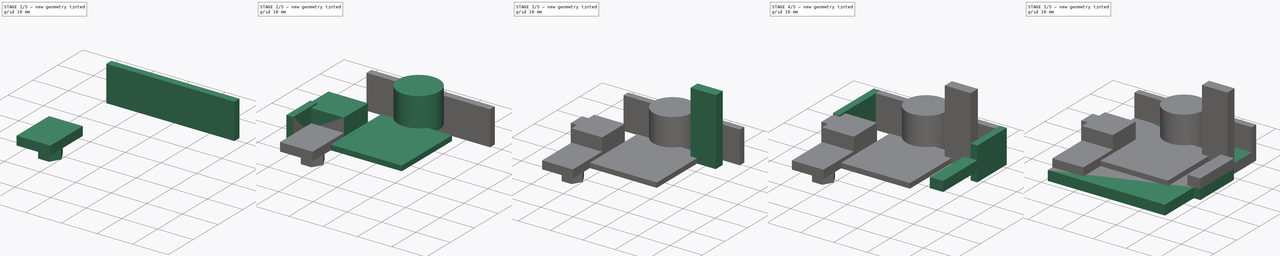
[diagram: build sequence overview — one tinted view per stage of 5, left to right]
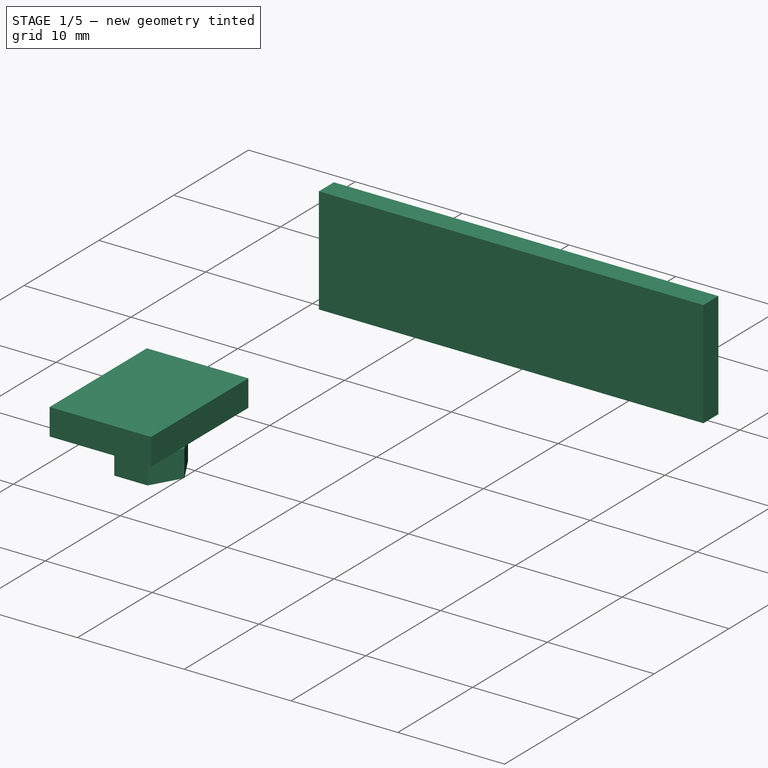
[diagram: stage 1 of 5 — iso view after this stage's code; geometry added in this stage tinted green]
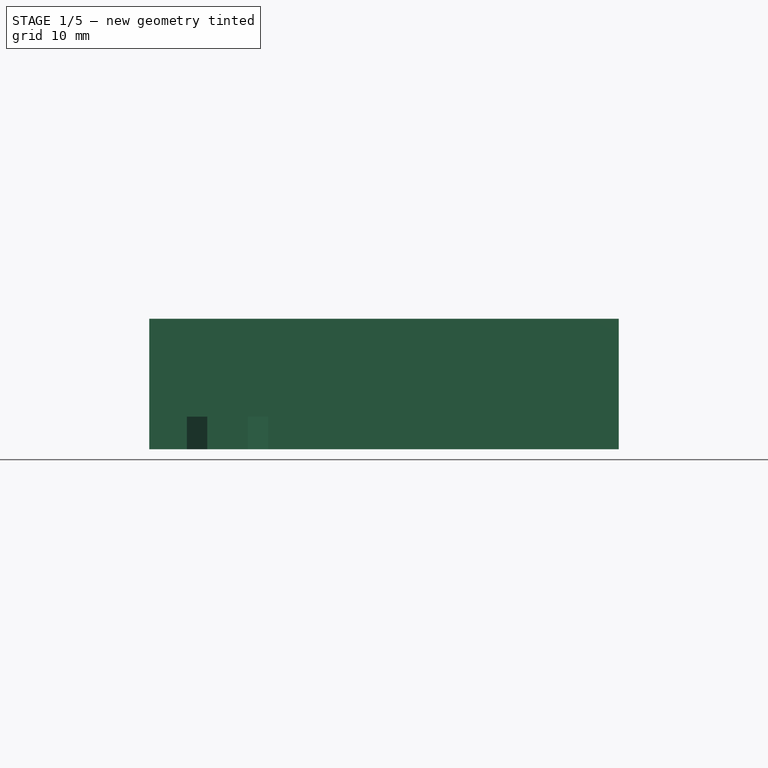
[diagram: stage 1 of 5 — front view after this stage's code; geometry added in this stage tinted green]
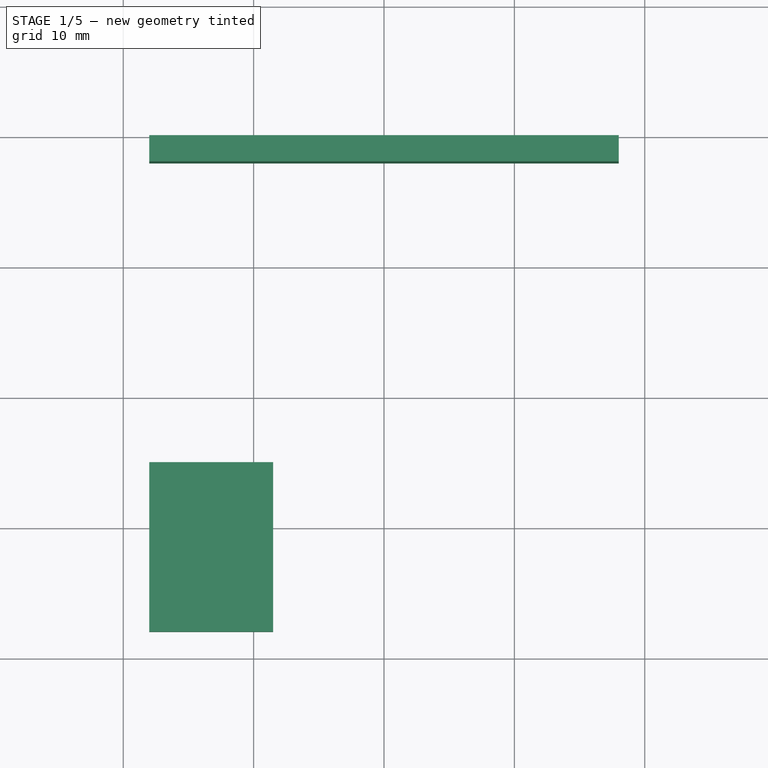
[diagram: stage 1 of 5 — top view after this stage's code; geometry added in this stage tinted green]
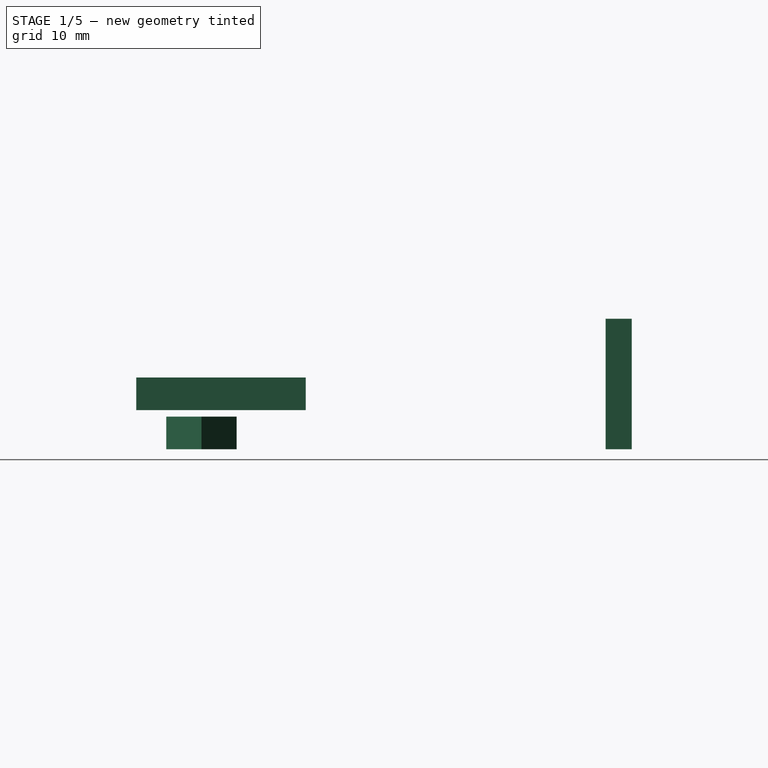
[diagram: stage 1 of 5 — right view after this stage's code; geometry added in this stage tinted green]
FCSTD DOCUMENT  (FreeCAD 0.19R24291 (Git))
Label: eth_conn_bottom_1_noncon
License: All rights reserved
LicenseURL: http://en.wikipedia.org/wiki/All_rights_reserved
objects: Part::Box×10, Part::Mirroring×6, Part::Cut×6, Part::Cylinder×2, Sketcher::SketchObject×1, Part::Extrusion×1
note: 26 computed .brp shape members not serialized (recipe doc carries the construction recipe); baked Part::Feature solids carry a one-line shape summary decoded from their .brp

FEATURE [Part::Cylinder] Cylinder001
  Angle = 360
  AttacherType = Attacher::AttachEngine3D
  Height = 10
  Placement = pos=(8,-3,0) rot=(0,0,1;0rad)
  Radius = 1.5
FEATURE [Part::Box] Box008  label="Cube008"
  AttacherType = Attacher::AttachEngine3D
  Height = 10
  Length = 36
  Placement = pos=(2,-10,0) rot=(0,0,1;0rad)
  Width = 2
FEATURE [Part::Mirroring] mirror  label="Cube008 (mirrored)"
  Base = (0,10,0)
  Normal = (0,-1,0)
  Source = -> Box008
FEATURE [Part::Box] Box009  label="Cube009"
  AttacherType = Attacher::AttachEngine3D
  Height = 2.5
  Length = 9.5
  Placement = pos=(2,-8,3) rot=(0,0,1;0rad)
  Width = 13
FEATURE [Sketcher::SketchObject] Sketch
  FullyConstrained = true
  MapMode = 5
  Placement = pos=(8,-3,0) rot=(1,0,0;3.14159rad)
  Support = -> [Cylinder001]
  sketch-geometry (7):
    g0: LineSegment StartX=3.11769 StartY=0 StartZ=0 EndX=1.55885 EndY=2.7 EndZ=0
    g1: LineSegment StartX=1.55885 StartY=2.7 StartZ=0 EndX=-1.55885 EndY=2.7 EndZ=0
    g2: LineSegment StartX=-1.55885 StartY=2.7 StartZ=0 EndX=-3.11769 EndY=4.9e-15 EndZ=0
    g3: LineSegment StartX=-3.11769 StartY=4.8e-15 StartZ=0 EndX=-1.55885 EndY=-2.7 EndZ=0
    g4: LineSegment StartX=-1.55885 StartY=-2.7 StartZ=0 EndX=1.55885 EndY=-2.7 EndZ=0
    g5: LineSegment StartX=1.55885 StartY=-2.7 StartZ=0 EndX=3.11769 EndY=0 EndZ=0
    g6: Circle CenterX=0 CenterY=0 CenterZ=0 NormalX=0 NormalY=0 NormalZ=1 AngleXU=0 Radius=3.11769
  constraints (16):
    c: Coincident(g0,g1)
    c: Coincident(g1,g2)
    c: Coincident(g2,g3)
    c: Coincident(g3,g4)
    c: Coincident(g4,g5)
    c: Coincident(g5,g0)
    c: Equal(g0, g1-g5) x5
    c: PointOnObject(g0,g6)
    c: PointOnObject(g1,g6)
    c: PointOnObject(g2,g6)
    c: PointOnObject(g3,g6)
    c: PointOnObject(g4,g6)
    c: PointOnObject(g5,g6)
    c: Coincident(g6,g-1)
    c: PointOnObject(g0,g-1)
    c: Distance(g-1,g1) = 2.7
FEATURE [Part::Extrusion] Extrude
  Base = -> Sketch
  Dir = (0,0,1)
  DirMode = 0
  FaceMakerClass = Part::FaceMakerBullseye
  LengthFwd = 2.5
  LengthRev = 0
  Solid = true
  Symmetric = false
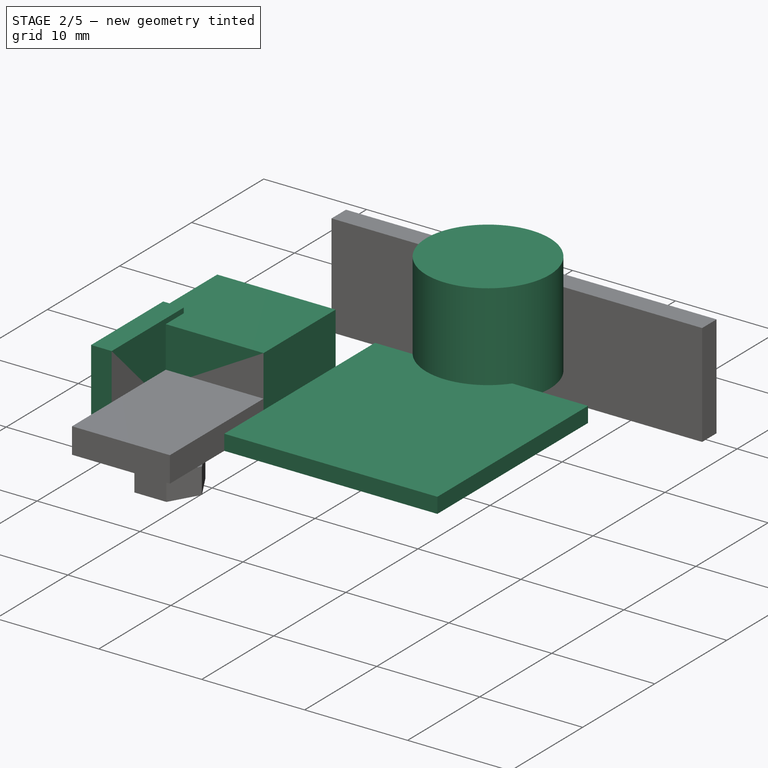
[diagram: stage 2 of 5 — iso view after this stage's code; geometry added in this stage tinted green]
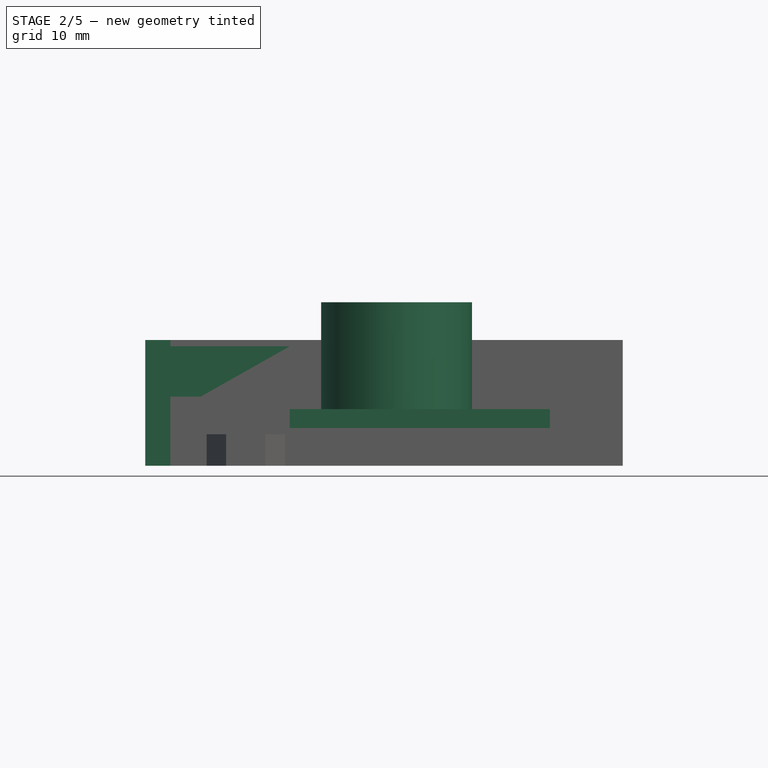
[diagram: stage 2 of 5 — front view after this stage's code; geometry added in this stage tinted green]
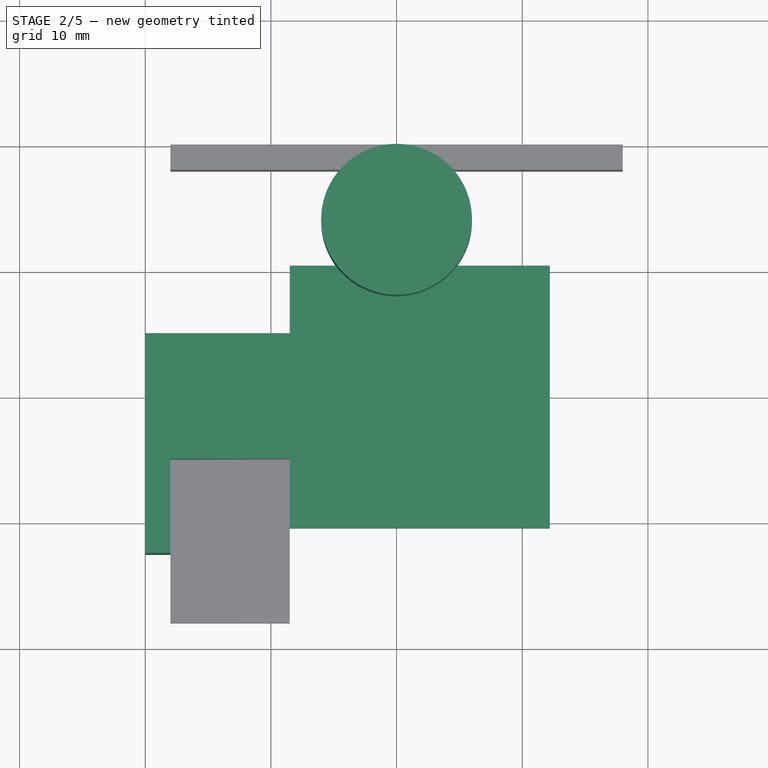
[diagram: stage 2 of 5 — top view after this stage's code; geometry added in this stage tinted green]
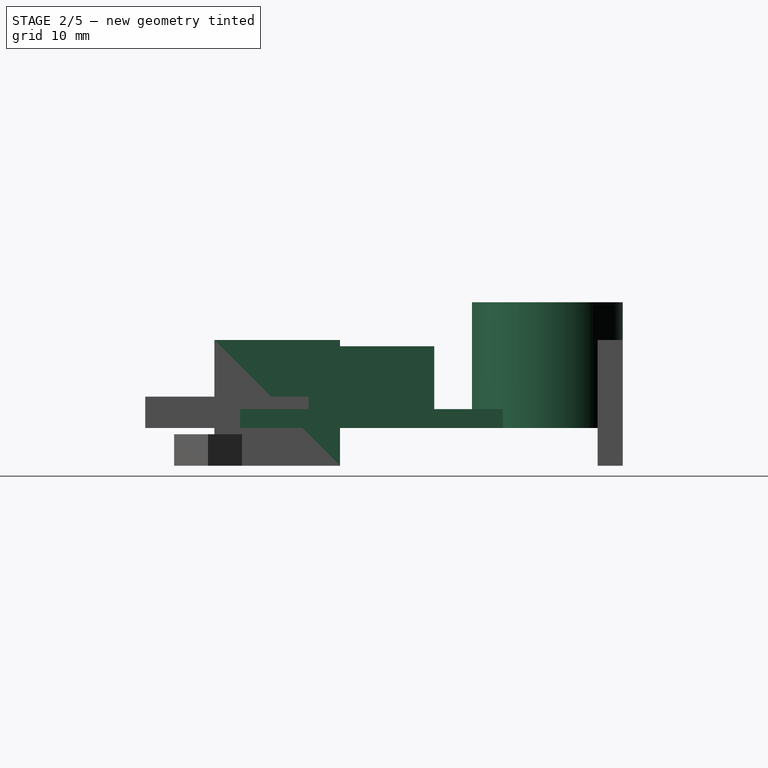
[diagram: stage 2 of 5 — right view after this stage's code; geometry added in this stage tinted green]
FEATURE [Part::Box] Box005  label="Cube005"
  AttacherType = Attacher::AttachEngine3D
  Height = 6.5
  Length = 11.5
  Placement = pos=(0,5,3) rot=(0,0,1;0rad)
  Width = 10
FEATURE [Part::Box] Box006  label="Cube006"
  AttacherType = Attacher::AttachEngine3D
  Height = 10
  Length = 2
  Placement = pos=(0,-2.5,0) rot=(0,0,1;0rad)
  Width = 10
FEATURE [Part::Box] Box007  label="Cube007"
  AttacherType = Attacher::AttachEngine3D
  Height = 1.5
  Length = 20.7
  Placement = pos=(11.5,-0.448498,3) rot=(0,0,1;0rad)
  Width = 20.9
FEATURE [Part::Cylinder] Cylinder
  Angle = 360
  AttacherType = Attacher::AttachEngine3D
  Height = 10
  Placement = pos=(20,-4,3) rot=(0,0,1;0rad)
  Radius = 6
FEATURE [Part::Mirroring] Part__Mirroring004  label="Cylinder (Mirror #5)"
  Base = (0,0,0)
  Normal = (0,1,0)
  Placement = pos=(0,20,0) rot=(0,0,1;0rad)
  Source = -> Cylinder
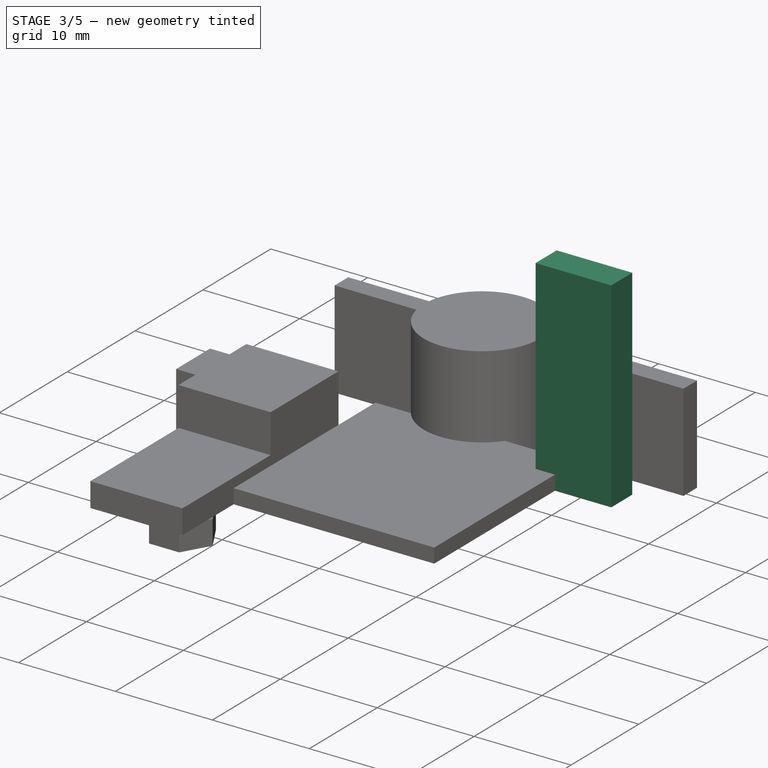
[diagram: stage 3 of 5 — iso view after this stage's code; geometry added in this stage tinted green]
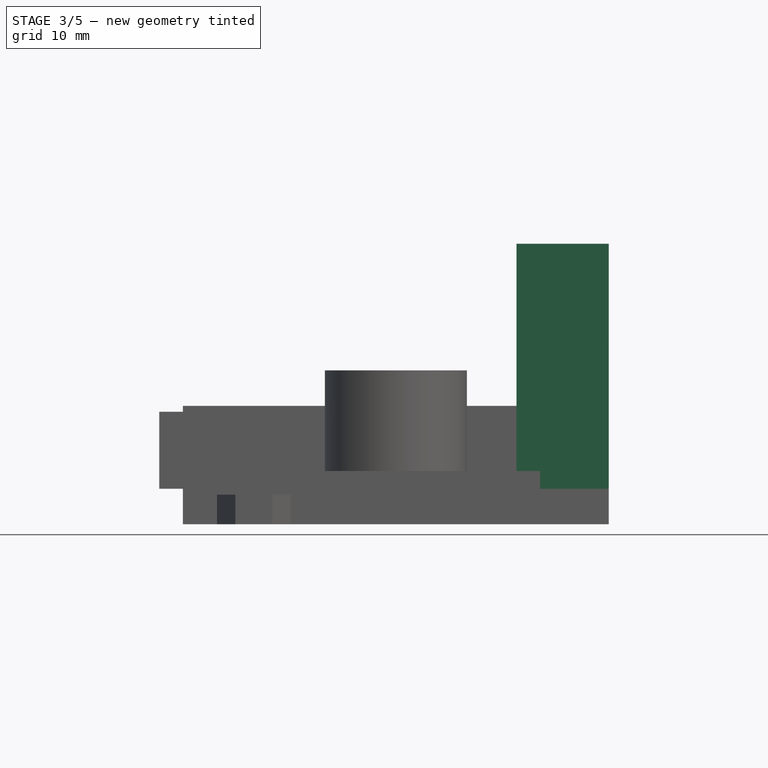
[diagram: stage 3 of 5 — front view after this stage's code; geometry added in this stage tinted green]
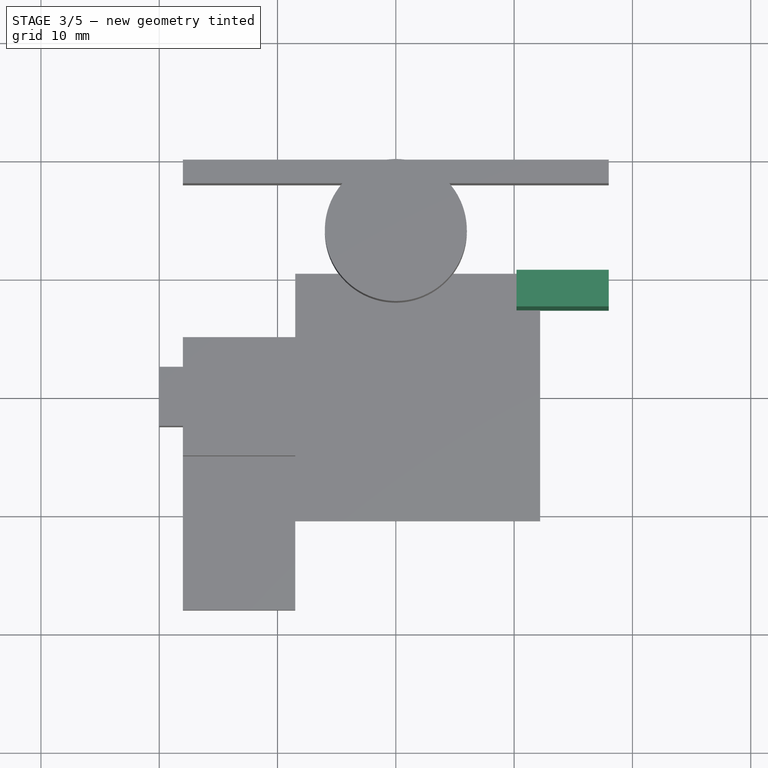
[diagram: stage 3 of 5 — top view after this stage's code; geometry added in this stage tinted green]
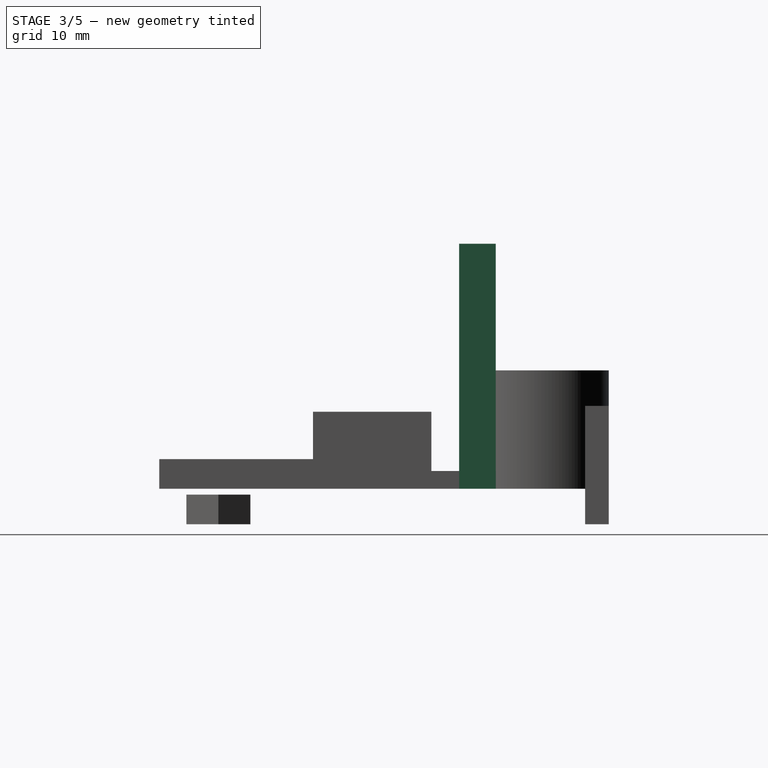
[diagram: stage 3 of 5 — right view after this stage's code; geometry added in this stage tinted green]
FEATURE [Part::Box] Box004  label="Cube004"
  AttacherType = Attacher::AttachEngine3D
  Height = 20.7
  Length = 7.8
  Placement = pos=(30.2,-0.450903,3) rot=(0,0,1;0rad)
  Width = 3.1
FEATURE [Part::Mirroring] Part__Mirroring002  label="Cube004 (Mirror #3)"
  Base = (0,0,0)
  Normal = (0,1,0)
  Placement = pos=(0,20,0) rot=(0,0,1;0rad)
  Source = -> Box004
FEATURE [Part::Mirroring] Part__Mirroring003  label="Cube006 (Mirror #4)"
  Base = (0,0,0)
  Normal = (0,1,0)
  Placement = pos=(0,20,0) rot=(0,0,1;0rad)
  Source = -> Box006
FEATURE [Part::Cut] Cut004
  Base = -> Box005
  Tool = -> Box006
FEATURE [Part::Cut] Cut005
  Base = -> Cut004
  Tool = -> Part__Mirroring003
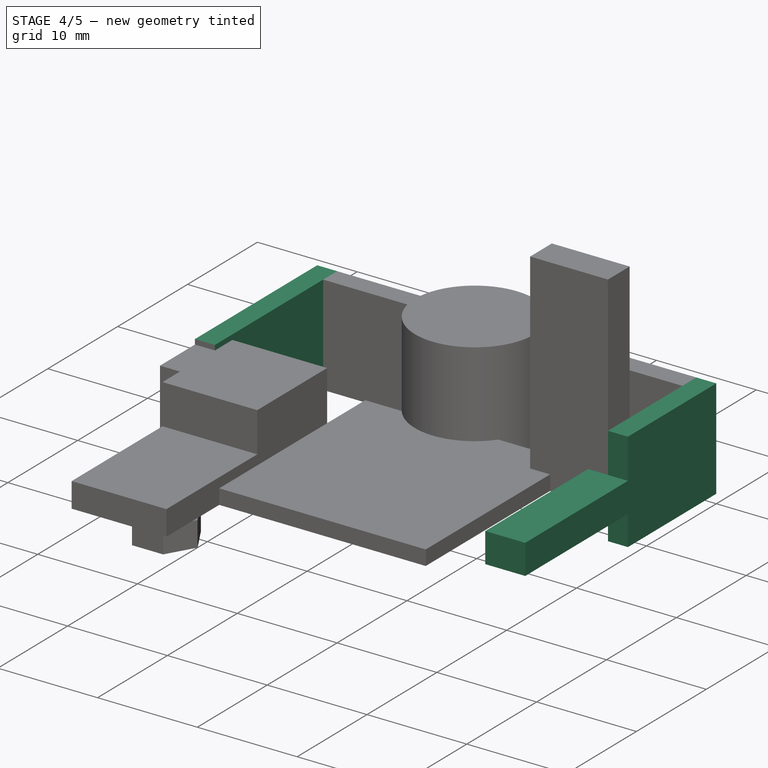
[diagram: stage 4 of 5 — iso view after this stage's code; geometry added in this stage tinted green]
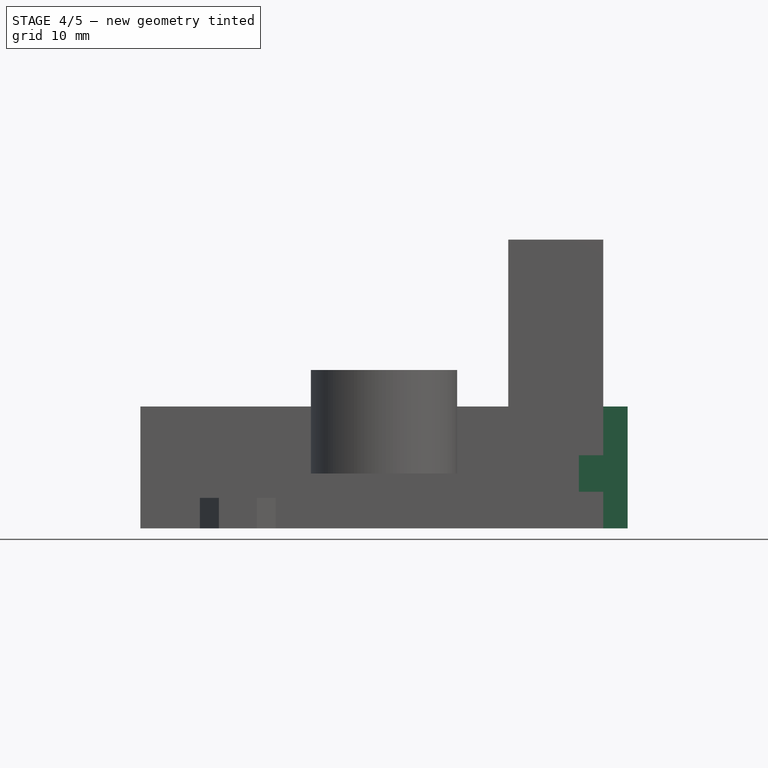
[diagram: stage 4 of 5 — front view after this stage's code; geometry added in this stage tinted green]
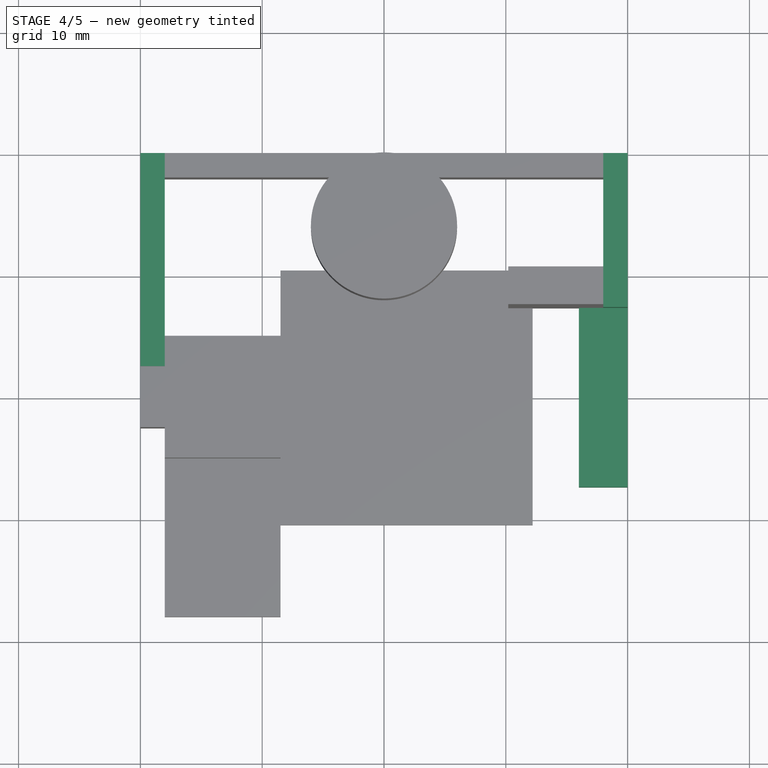
[diagram: stage 4 of 5 — top view after this stage's code; geometry added in this stage tinted green]
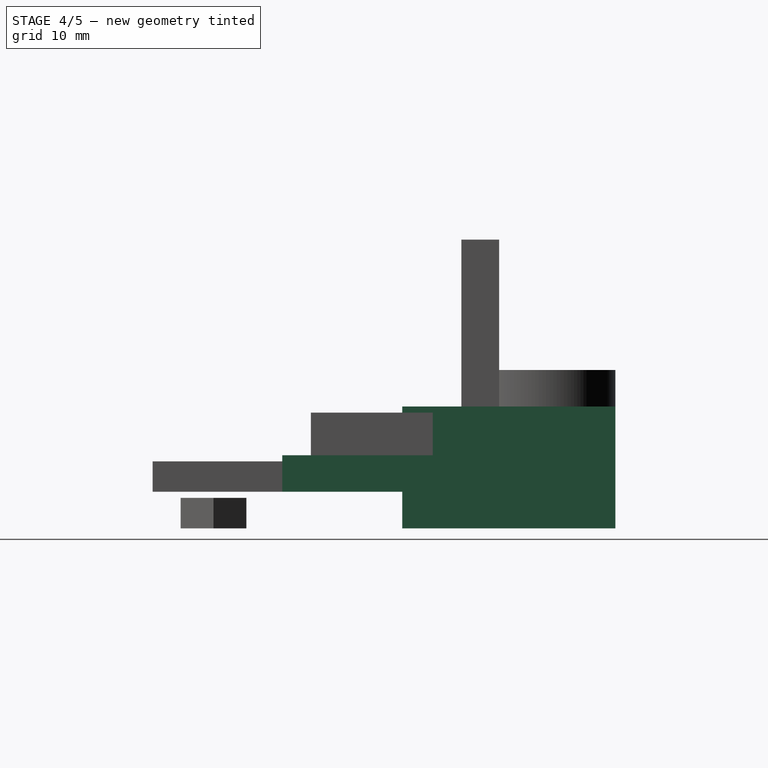
[diagram: stage 4 of 5 — right view after this stage's code; geometry added in this stage tinted green]
FEATURE [Part::Box] Box001  label="Cube001"
  AttacherType = Attacher::AttachEngine3D
  Height = 10
  Length = 2
  Placement = pos=(0,-10,0) rot=(0,0,1;0rad)
  Width = 17.5
FEATURE [Part::Mirroring] Part__Mirroring  label="Cube001 (Mirror #1)"
  Base = (0,0,0)
  Normal = (0,1,0)
  Placement = pos=(0,20,0) rot=(0,0,1;0rad)
  Source = -> Box001
FEATURE [Part::Box] Box002  label="Cube002"
  AttacherType = Attacher::AttachEngine3D
  Height = 10
  Length = 2
  Placement = pos=(38,-10,0) rot=(0,0,1;0rad)
  Width = 12.65
FEATURE [Part::Mirroring] Part__Mirroring001  label="Cube002 (Mirror #2)"
  Base = (0,0,0)
  Normal = (0,1,0)
  Placement = pos=(0,20,0) rot=(0,0,1;0rad)
  Source = -> Box002
FEATURE [Part::Box] Box003  label="Cube003"
  AttacherType = Attacher::AttachEngine3D
  Height = 3
  Length = 4
  Placement = pos=(36,2.65,3) rot=(0,0,1;0rad)
  Width = 14.7
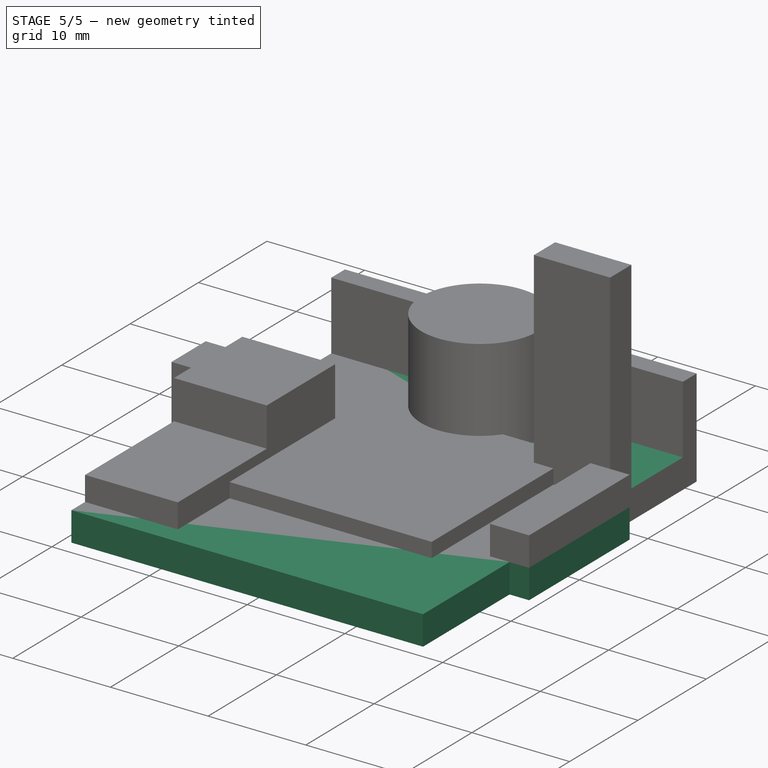
[diagram: stage 5 of 5 — iso view after this stage's code; geometry added in this stage tinted green]
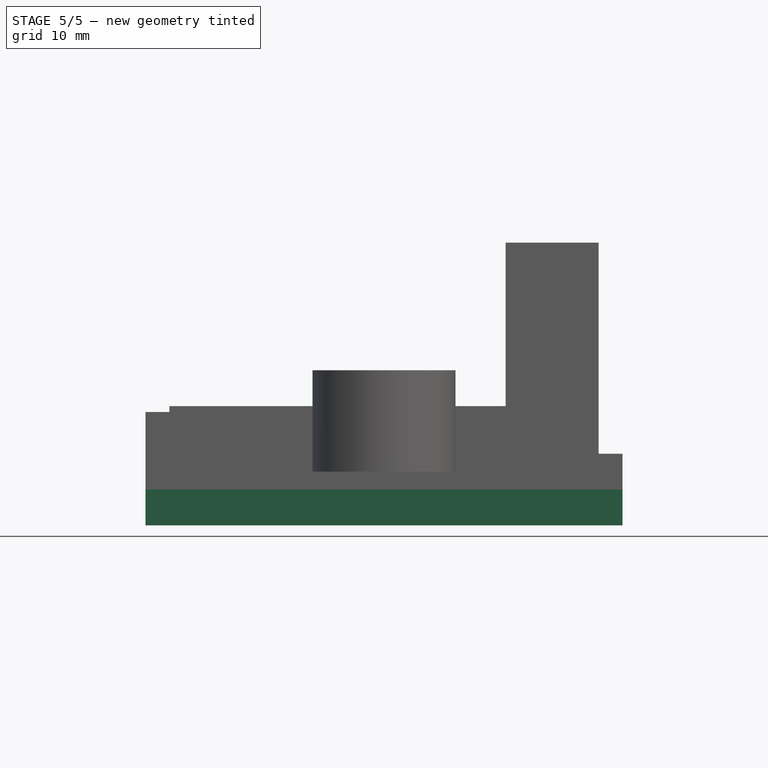
[diagram: stage 5 of 5 — front view after this stage's code; geometry added in this stage tinted green]
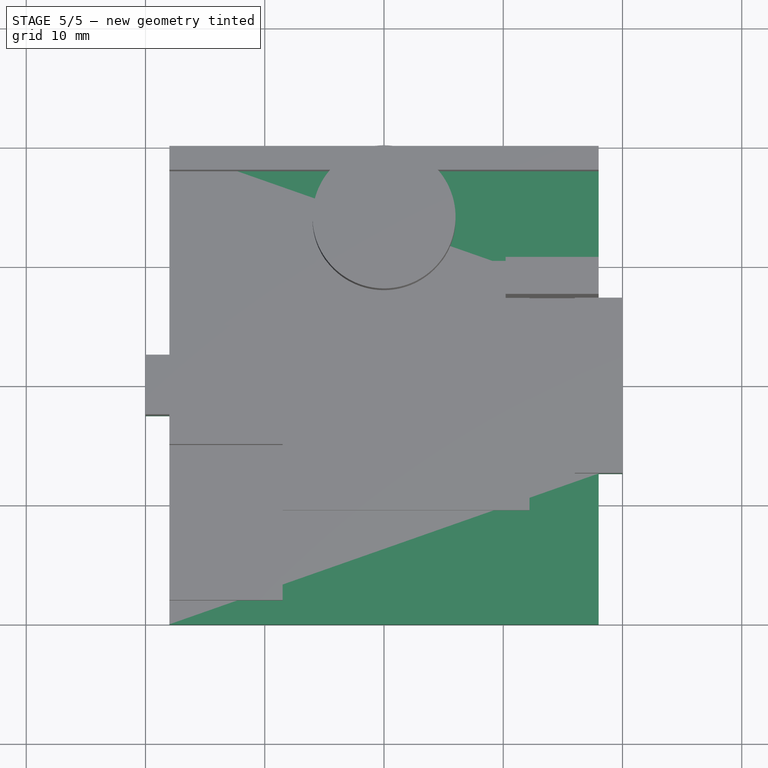
[diagram: stage 5 of 5 — top view after this stage's code; geometry added in this stage tinted green]
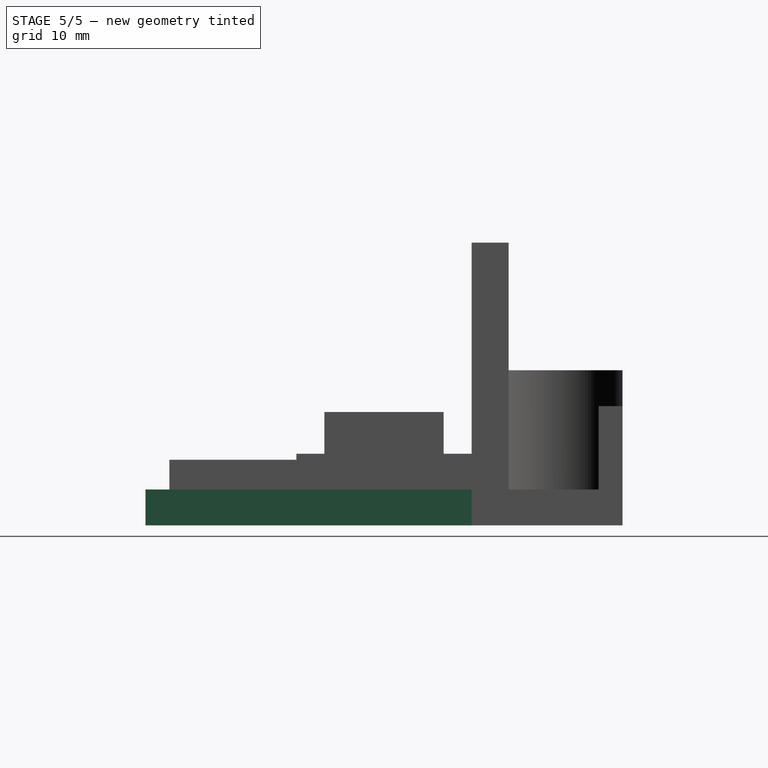
[diagram: stage 5 of 5 — right view after this stage's code; geometry added in this stage tinted green]
FEATURE [Part::Box] Box  label="Cube"
  AttacherType = Attacher::AttachEngine3D
  Height = 3
  Length = 40
  Placement = pos=(0,-10,0) rot=(0,0,1;0rad)
  Width = 40
FEATURE [Part::Cut] Cut
  Base = -> Box
  Tool = -> Part__Mirroring
FEATURE [Part::Cut] Cut001
  Base = -> Cut
  Tool = -> Box001
FEATURE [Part::Cut] Cut002
  Base = -> Cut001
  Tool = -> Part__Mirroring001
FEATURE [Part::Cut] Cut003
  Base = -> Cut002
  Tool = -> Box002
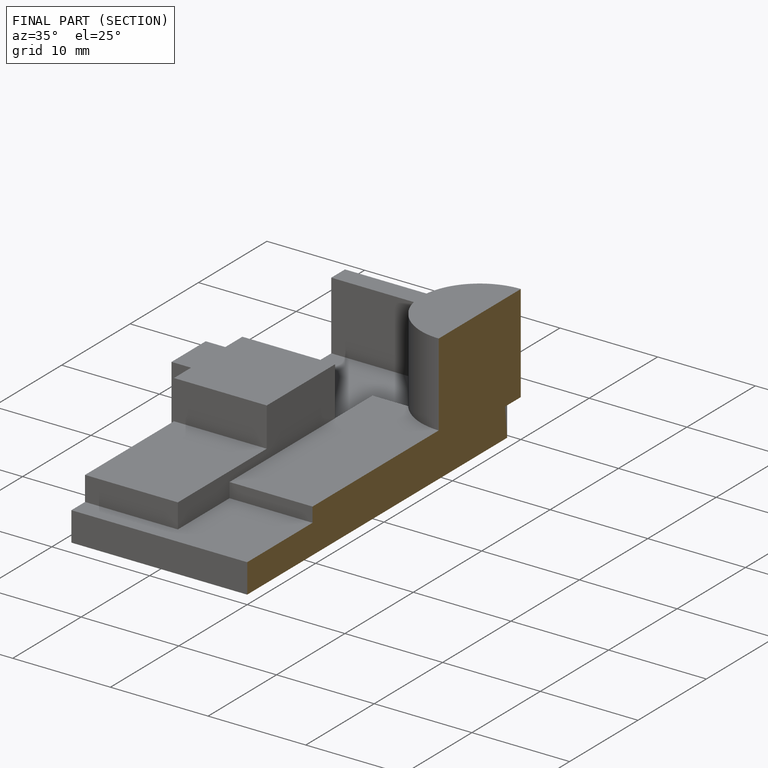
[diagram: finished part — half-section view (interior)]
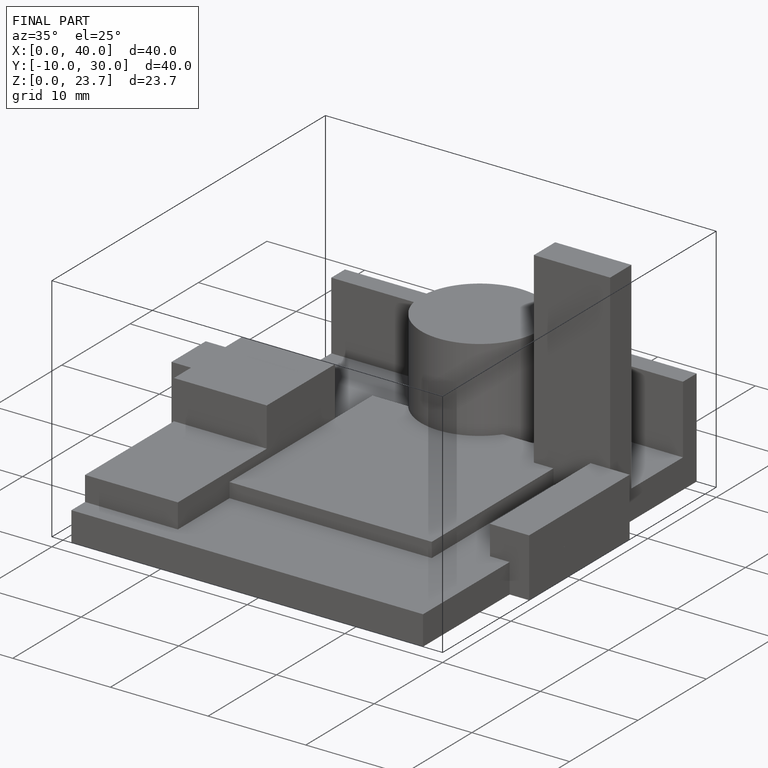
[diagram: finished part — iso view with bounding-box wireframe]
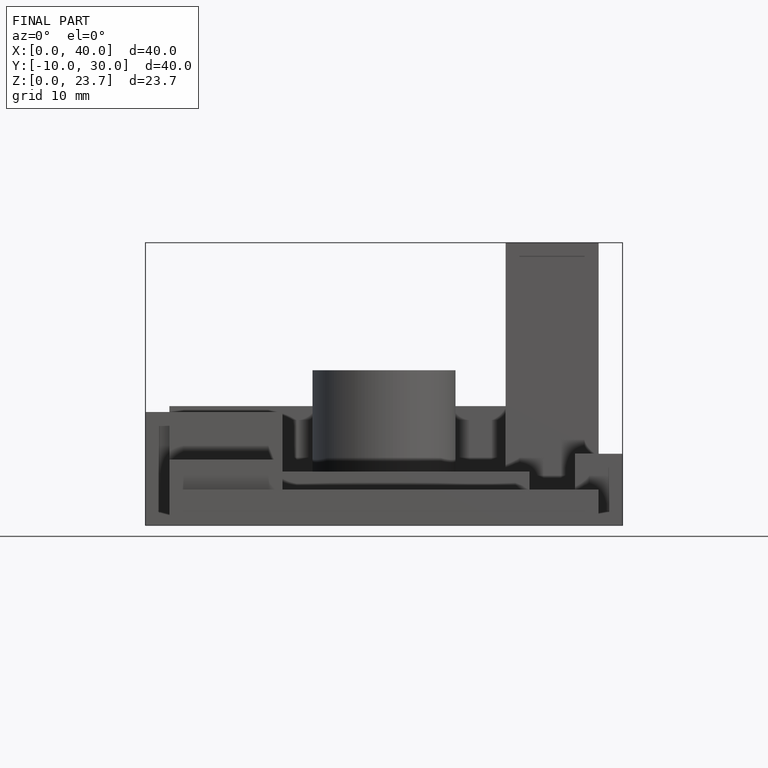
[diagram: finished part — front view with bounding-box wireframe]
